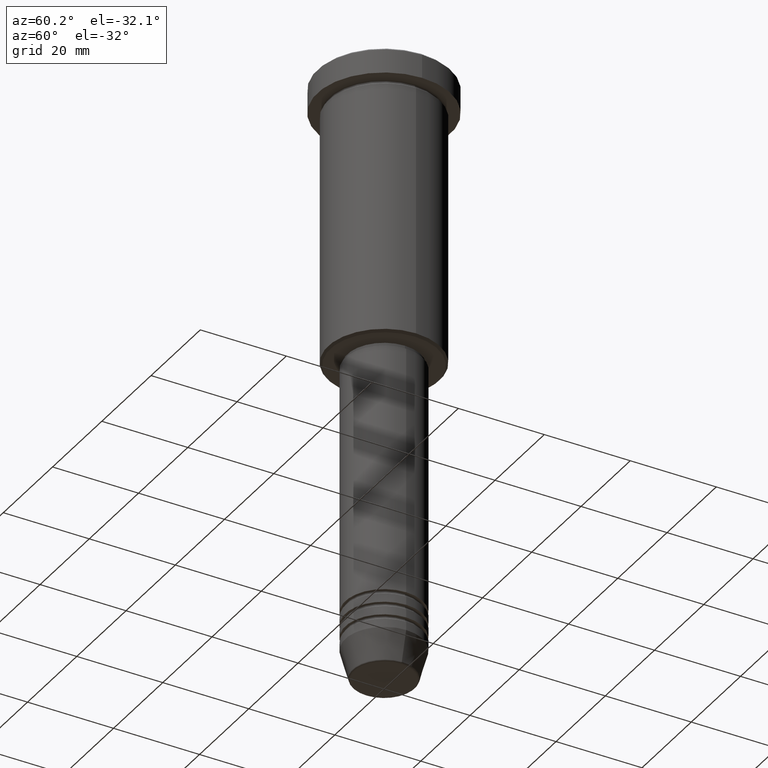
[diagram: clean part render]
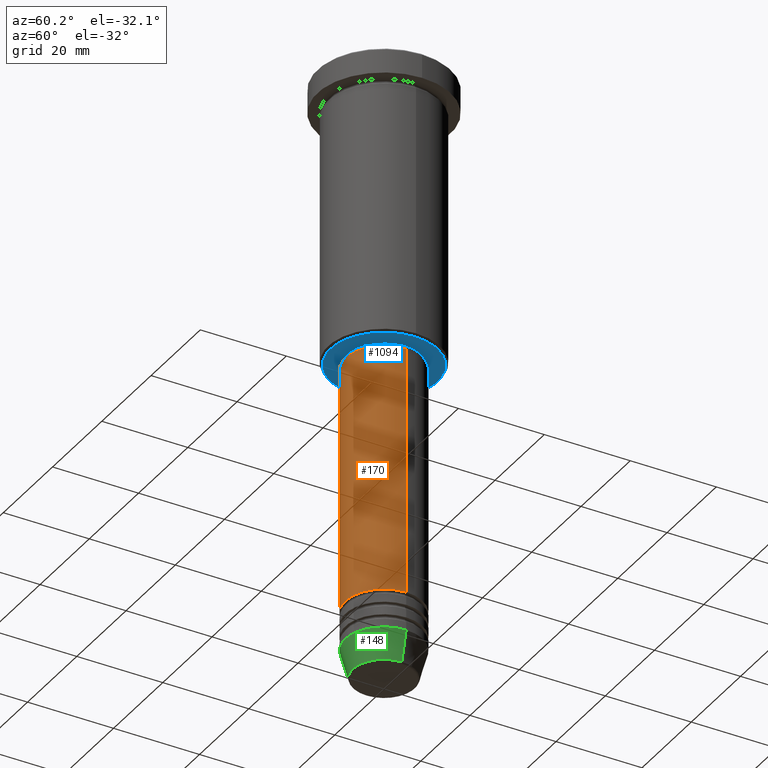
[diagram: same view with three faces highlighted in distinct colors, each labeled with its STEP entity id]
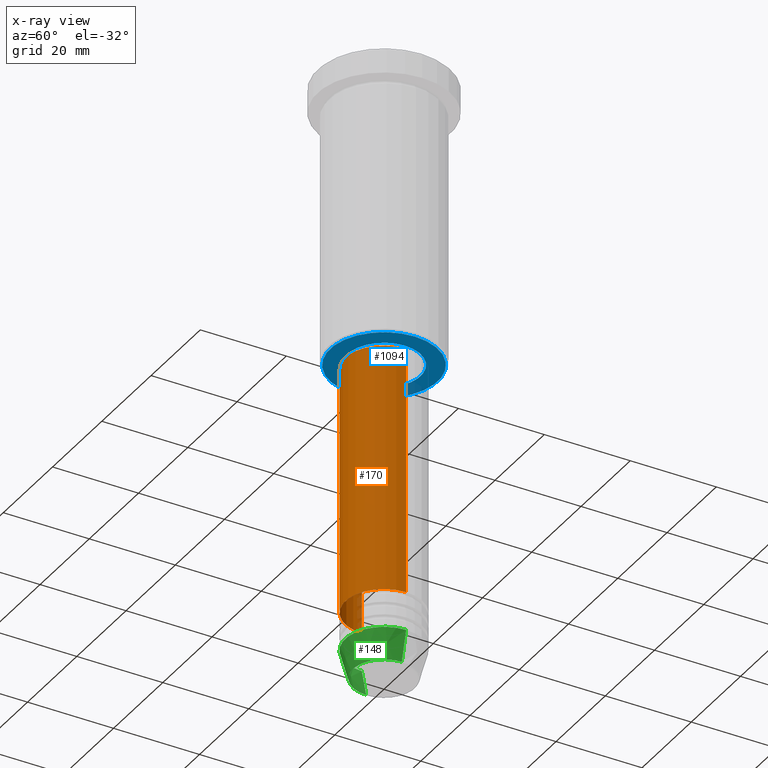
[diagram: x-ray of the same camera — body ghosted, the three highlighted faces saturated]
A machine part, auxiliary view with three faces highlighted in distinct colors.
The next image is the same camera in x-ray (body ghosted, the three faces saturated) — at least one of them is partly hidden behind the body in this view.
Their STEP definitions:

[orange] entity #170 — the highlighted cylindrical surface (partial cylindrical patch) has radius 9 mm, axis along (-0, -0, 1).
#5 = EDGE_CURVE ( 'NONE', #862, #579, #905, .T. ) ;
#19 = CIRCLE ( 'NONE', #214, 9.000000000000000000 ) ;
#21 = ORIENTED_EDGE ( 'NONE', *, *, #5, .T. ) ;
#26 = CARTESIAN_POINT ( 'NONE',  ( 9.000000000000000000, 0.000000000000000000, -67.00000000000000000 ) ) ;
#46 = DIRECTION ( 'NONE',  ( 1.000000000000000000, 0.000000000000000000, 0.000000000000000000 ) ) ;
#80 = CARTESIAN_POINT ( 'NONE',  ( 9.000000000000000000, 0.000000000000000000, 0.000000000000000000 ) ) ;
#131 = CYLINDRICAL_SURFACE ( 'NONE', #139, 9.000000000000000000 ) ;
#139 = AXIS2_PLACEMENT_3D ( 'NONE', #786, #703, #604 ) ;
#142 = FACE_OUTER_BOUND ( 'NONE', #946, .T. ) ;
#162 = AXIS2_PLACEMENT_3D ( 'NONE', #1052, #230, #556 ) ;
#170 = ADVANCED_FACE ( 'NONE', ( #142 ), #131, .T. ) ;
#191 = VECTOR ( 'NONE', #623, 1000.000000000000000 ) ;
#213 = EDGE_CURVE ( 'NONE', #573, #862, #639, .T. ) ;
#214 = AXIS2_PLACEMENT_3D ( 'NONE', #685, #783, #46 ) ;
#230 = DIRECTION ( 'NONE',  ( -0.000000000000000000, -0.000000000000000000, 1.000000000000000000 ) ) ;
#233 = CARTESIAN_POINT ( 'NONE',  ( -9.000000000000000000, 1.102182119232617714E-15, -124.9999999999999716 ) ) ;
#459 = EDGE_CURVE ( 'NONE', #1062, #579, #19, .T. ) ;
#540 = CARTESIAN_POINT ( 'NONE',  ( -9.000000000000000000, 1.102182119232617714E-15, 0.000000000000000000 ) ) ;
#551 = LINE ( 'NONE', #540, #980 ) ;
#556 = DIRECTION ( 'NONE',  ( 1.000000000000000000, 0.000000000000000000, 0.000000000000000000 ) ) ;
#573 = VERTEX_POINT ( 'NONE', #233 ) ;
#579 = VERTEX_POINT ( 'NONE', #26 ) ;
#597 = CARTESIAN_POINT ( 'NONE',  ( 9.000000000000000000, 0.000000000000000000, -124.9999999999999716 ) ) ;
#604 = DIRECTION ( 'NONE',  ( 1.000000000000000000, 0.000000000000000000, 0.000000000000000000 ) ) ;
#623 = DIRECTION ( 'NONE',  ( -0.000000000000000000, -0.000000000000000000, 1.000000000000000000 ) ) ;
#639 = CIRCLE ( 'NONE', #162, 9.000000000000000000 ) ;
#669 = ORIENTED_EDGE ( 'NONE', *, *, #459, .F. ) ;
#685 = CARTESIAN_POINT ( 'NONE',  ( 0.000000000000000000, 0.000000000000000000, -67.00000000000000000 ) ) ;
#703 = DIRECTION ( 'NONE',  ( -0.000000000000000000, -0.000000000000000000, 1.000000000000000000 ) ) ;
#780 = ORIENTED_EDGE ( 'NONE', *, *, #213, .T. ) ;
#783 = DIRECTION ( 'NONE',  ( -0.000000000000000000, -0.000000000000000000, 1.000000000000000000 ) ) ;
#786 = CARTESIAN_POINT ( 'NONE',  ( 0.000000000000000000, 0.000000000000000000, 0.000000000000000000 ) ) ;
#862 = VERTEX_POINT ( 'NONE', #597 ) ;
#878 = DIRECTION ( 'NONE',  ( -0.000000000000000000, -0.000000000000000000, 1.000000000000000000 ) ) ;
#905 = LINE ( 'NONE', #80, #191 ) ;
#946 = EDGE_LOOP ( 'NONE', ( #1029, #780, #21, #669 ) ) ;
#980 = VECTOR ( 'NONE', #878, 1000.000000000000000 ) ;
#1029 = ORIENTED_EDGE ( 'NONE', *, *, #1030, .F. ) ;
#1030 = EDGE_CURVE ( 'NONE', #573, #1062, #551, .T. ) ;
#1052 = CARTESIAN_POINT ( 'NONE',  ( 0.000000000000000000, 0.000000000000000000, -124.9999999999999716 ) ) ;
#1062 = VERTEX_POINT ( 'NONE', #1176 ) ;
#1176 = CARTESIAN_POINT ( 'NONE',  ( -9.000000000000000000, 1.102182119232617714E-15, -67.00000000000000000 ) ) ;

[blue] entity #1094 — the highlighted planar face has unit normal (0, 0, -1).
#14 = FACE_BOUND ( 'NONE', #141, .T. ) ;
#43 = VERTEX_POINT ( 'NONE', #925 ) ;
#111 = CARTESIAN_POINT ( 'NONE',  ( 0.000000000000000000, 13.00000000000000000, -66.00000000000000000 ) ) ;
#141 = EDGE_LOOP ( 'NONE', ( #957, #359 ) ) ;
#195 = DIRECTION ( 'NONE',  ( 0.000000000000000000, 0.000000000000000000, -1.000000000000000000 ) ) ;
#227 = EDGE_CURVE ( 'NONE', #43, #349, #594, .T. ) ;
#249 = EDGE_CURVE ( 'NONE', #1044, #896, #1093, .T. ) ;
#274 = DIRECTION ( 'NONE',  ( 1.000000000000000000, 0.000000000000000000, 0.000000000000000000 ) ) ;
#286 = AXIS2_PLACEMENT_3D ( 'NONE', #111, #476, #1112 ) ;
#349 = VERTEX_POINT ( 'NONE', #791 ) ;
#359 = ORIENTED_EDGE ( 'NONE', *, *, #249, .T. ) ;
#377 = CARTESIAN_POINT ( 'NONE',  ( 0.000000000000000000, 0.000000000000000000, -66.00000000000000000 ) ) ;
#379 = DIRECTION ( 'NONE',  ( 0.000000000000000000, 0.000000000000000000, -1.000000000000000000 ) ) ;
#385 = AXIS2_PLACEMENT_3D ( 'NONE', #377, #195, #912 ) ;
#415 = EDGE_CURVE ( 'NONE', #349, #43, #916, .T. ) ;
#469 = CARTESIAN_POINT ( 'NONE',  ( 0.000000000000000000, 0.000000000000000000, -66.00000000000000000 ) ) ;
#475 = DIRECTION ( 'NONE',  ( -1.000000000000000000, 0.000000000000000000, 0.000000000000000000 ) ) ;
#476 = DIRECTION ( 'NONE',  ( 0.000000000000000000, 0.000000000000000000, -1.000000000000000000 ) ) ;
#561 = CIRCLE ( 'NONE', #766, 8.499999999999998224 ) ;
#594 = CIRCLE ( 'NONE', #936, 12.49999999999996980 ) ;
#674 = CARTESIAN_POINT ( 'NONE',  ( 0.000000000000000000, 0.000000000000000000, -66.00000000000000000 ) ) ;
#681 = EDGE_CURVE ( 'NONE', #896, #1044, #561, .T. ) ;
#728 = AXIS2_PLACEMENT_3D ( 'NONE', #674, #772, #947 ) ;
#749 = CARTESIAN_POINT ( 'NONE',  ( 0.000000000000000000, 0.000000000000000000, -66.00000000000000000 ) ) ;
#766 = AXIS2_PLACEMENT_3D ( 'NONE', #749, #928, #274 ) ;
#772 = DIRECTION ( 'NONE',  ( -0.000000000000000000, -0.000000000000000000, 1.000000000000000000 ) ) ;
#791 = CARTESIAN_POINT ( 'NONE',  ( -12.49999999999996980, 1.561424668912873336E-15, -66.00000000000000000 ) ) ;
#853 = EDGE_LOOP ( 'NONE', ( #943, #985 ) ) ;
#896 = VERTEX_POINT ( 'NONE', #975 ) ;
#912 = DIRECTION ( 'NONE',  ( -1.000000000000000000, 0.000000000000000000, 0.000000000000000000 ) ) ;
#916 = CIRCLE ( 'NONE', #385, 12.49999999999996980 ) ;
#925 = CARTESIAN_POINT ( 'NONE',  ( 12.49999999999996980, 0.000000000000000000, -66.00000000000000000 ) ) ;
#928 = DIRECTION ( 'NONE',  ( -0.000000000000000000, -0.000000000000000000, 1.000000000000000000 ) ) ;
#936 = AXIS2_PLACEMENT_3D ( 'NONE', #469, #379, #475 ) ;
#943 = ORIENTED_EDGE ( 'NONE', *, *, #227, .T. ) ;
#947 = DIRECTION ( 'NONE',  ( 1.000000000000000000, 0.000000000000000000, 0.000000000000000000 ) ) ;
#957 = ORIENTED_EDGE ( 'NONE', *, *, #681, .T. ) ;
#975 = CARTESIAN_POINT ( 'NONE',  ( 8.499999999999998224, 0.000000000000000000, -66.00000000000000000 ) ) ;
#985 = ORIENTED_EDGE ( 'NONE', *, *, #415, .T. ) ;
#1005 = FACE_OUTER_BOUND ( 'NONE', #853, .T. ) ;
#1023 = PLANE ( 'NONE',  #286 ) ;
#1044 = VERTEX_POINT ( 'NONE', #1163 ) ;
#1093 = CIRCLE ( 'NONE', #728, 8.499999999999998224 ) ;
#1094 = ADVANCED_FACE ( 'NONE', ( #1005, #14 ), #1023, .T. ) ;
#1112 = DIRECTION ( 'NONE',  ( -1.000000000000000000, 0.000000000000000000, -0.000000000000000000 ) ) ;
#1163 = CARTESIAN_POINT ( 'NONE',  ( -8.499999999999998224, 1.040949779275249943E-15, -66.00000000000000000 ) ) ;

[green] entity #148 — the highlighted conical surface has half-angle 15 deg.
#9 = VERTEX_POINT ( 'NONE', #362 ) ;
#36 = ORIENTED_EDGE ( 'NONE', *, *, #271, .T. ) ;
#68 = DIRECTION ( 'NONE',  ( 0.2588190451025213501, 0.000000000000000000, 0.9659258262890680902 ) ) ;
#81 = CARTESIAN_POINT ( 'NONE',  ( 9.000000000000000000, 0.000000000000000000, -134.0000000000000000 ) ) ;
#94 = ORIENTED_EDGE ( 'NONE', *, *, #962, .F. ) ;
#128 = ORIENTED_EDGE ( 'NONE', *, *, #1113, .F. ) ;
#144 = DIRECTION ( 'NONE',  ( 1.000000000000000000, 0.000000000000000000, 0.000000000000000000 ) ) ;
#148 = ADVANCED_FACE ( 'NONE', ( #500 ), #510, .T. ) ;
#193 = VECTOR ( 'NONE', #277, 1000.000000000000000 ) ;
#228 = VERTEX_POINT ( 'NONE', #737 ) ;
#247 = LINE ( 'NONE', #81, #1057 ) ;
#252 = CARTESIAN_POINT ( 'NONE',  ( 0.000000000000000000, 0.000000000000000000, -134.0000000000000000 ) ) ;
#271 = EDGE_CURVE ( 'NONE', #228, #1174, #1015, .T. ) ;
#277 = DIRECTION ( 'NONE',  ( -0.2588190451025213501, 3.169619151431772337E-17, 0.9659258262890680902 ) ) ;
#342 = DIRECTION ( 'NONE',  ( 1.000000000000000000, 0.000000000000000000, 0.000000000000000000 ) ) ;
#362 = CARTESIAN_POINT ( 'NONE',  ( 9.000000000000000000, 0.000000000000000000, -134.0000000000000000 ) ) ;
#425 = ORIENTED_EDGE ( 'NONE', *, *, #953, .T. ) ;
#500 = FACE_OUTER_BOUND ( 'NONE', #716, .T. ) ;
#510 = CONICAL_SURFACE ( 'NONE', #1175, 9.000000000000000000, 0.2617993877991500740 ) ;
#574 = CARTESIAN_POINT ( 'NONE',  ( 0.000000000000000000, 0.000000000000000000, -140.6294095225512990 ) ) ;
#608 = CIRCLE ( 'NONE', #1035, 9.000000000000000000 ) ;
#628 = DIRECTION ( 'NONE',  ( -0.000000000000000000, -0.000000000000000000, 1.000000000000000000 ) ) ;
#694 = DIRECTION ( 'NONE',  ( 1.000000000000000000, 0.000000000000000000, 0.000000000000000000 ) ) ;
#716 = EDGE_LOOP ( 'NONE', ( #128, #36, #425, #94 ) ) ;
#729 = AXIS2_PLACEMENT_3D ( 'NONE', #574, #935, #144 ) ;
#733 = CARTESIAN_POINT ( 'NONE',  ( -9.000000000000000000, 1.102182119232617714E-15, -134.0000000000000000 ) ) ;
#737 = CARTESIAN_POINT ( 'NONE',  ( -7.223655072137189492, 9.934123627281765110E-16, -140.6294095225512990 ) ) ;
#747 = LINE ( 'NONE', #733, #193 ) ;
#863 = DIRECTION ( 'NONE',  ( -0.000000000000000000, -0.000000000000000000, 1.000000000000000000 ) ) ;
#910 = CARTESIAN_POINT ( 'NONE',  ( 7.223655072137188604, 0.000000000000000000, -140.6294095225512990 ) ) ;
#929 = VERTEX_POINT ( 'NONE', #996 ) ;
#935 = DIRECTION ( 'NONE',  ( -0.000000000000000000, -0.000000000000000000, 1.000000000000000000 ) ) ;
#953 = EDGE_CURVE ( 'NONE', #1174, #9, #247, .T. ) ;
#962 = EDGE_CURVE ( 'NONE', #929, #9, #608, .T. ) ;
#996 = CARTESIAN_POINT ( 'NONE',  ( -9.000000000000000000, 1.102182119232617714E-15, -134.0000000000000000 ) ) ;
#1015 = CIRCLE ( 'NONE', #729, 7.223655072137188604 ) ;
#1035 = AXIS2_PLACEMENT_3D ( 'NONE', #252, #628, #342 ) ;
#1057 = VECTOR ( 'NONE', #68, 1000.000000000000000 ) ;
#1113 = EDGE_CURVE ( 'NONE', #228, #929, #747, .T. ) ;
#1136 = CARTESIAN_POINT ( 'NONE',  ( 0.000000000000000000, 0.000000000000000000, -134.0000000000000000 ) ) ;
#1174 = VERTEX_POINT ( 'NONE', #910 ) ;
#1175 = AXIS2_PLACEMENT_3D ( 'NONE', #1136, #863, #694 ) ;